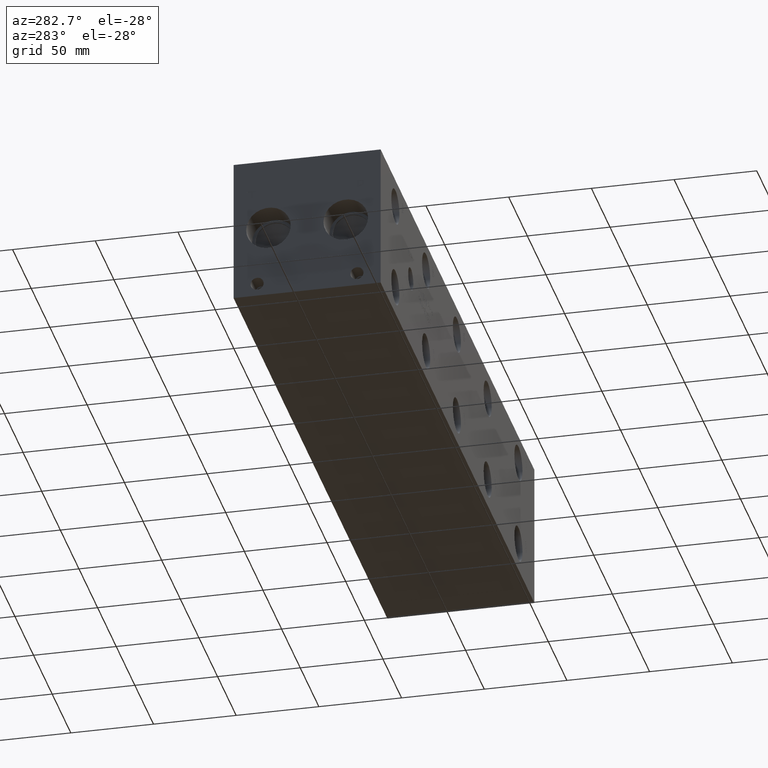
[diagram: clean part render]
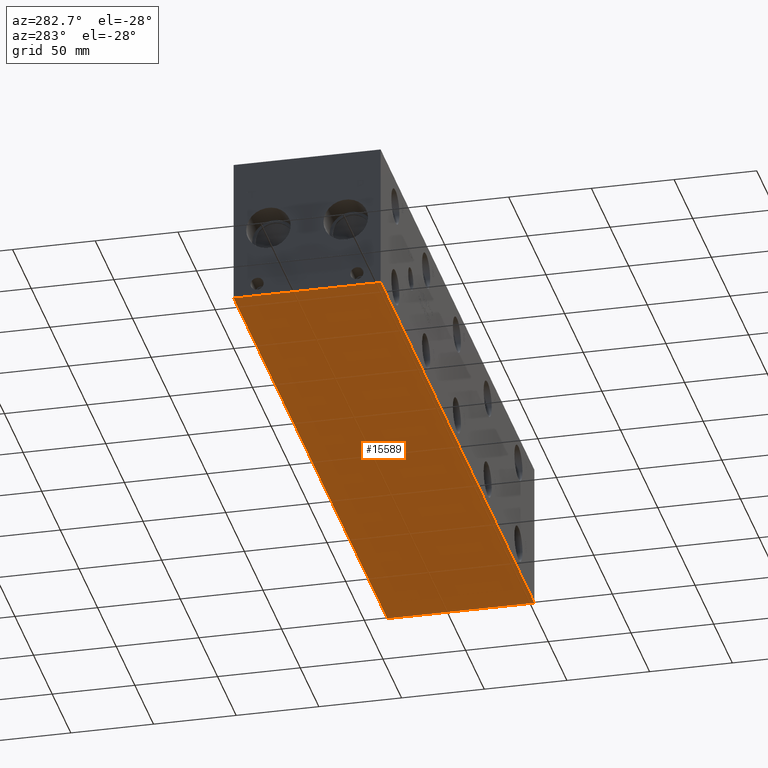
[diagram: same view with one face highlighted and labeled with its STEP entity id]
A machine part, auxiliary view. The second image highlights one B-rep face of the part: STEP entity #15589.
In plain terms, the highlighted planar face has unit normal (0, 0, 1).
Its self-contained STEP definition (entity closure, byte-faithful):
#2087=FACE_OUTER_BOUND('',#3048,.T.);
#3048=EDGE_LOOP('',(#13762,#13763,#13764,#13765));
#3105=LINE('',#20115,#4495);
#3165=LINE('',#20390,#4555);
#3448=LINE('',#22561,#4838);
#4437=LINE('',#26919,#5827);
#4495=VECTOR('',#16655,10.);
#4555=VECTOR('',#16769,10.);
#4838=VECTOR('',#17212,10.);
#5827=VECTOR('',#19851,10.);
#5877=VERTEX_POINT('',#20113);
#5878=VERTEX_POINT('',#20114);
#5937=VERTEX_POINT('',#20388);
#5938=VERTEX_POINT('',#20389);
#7403=EDGE_CURVE('',#5877,#5878,#3105,.T.);
#7487=EDGE_CURVE('',#5937,#5938,#3165,.T.);
#7964=EDGE_CURVE('',#5938,#5877,#3448,.T.);
#9474=EDGE_CURVE('',#5878,#5937,#4437,.T.);
#13762=ORIENTED_EDGE('',*,*,#7964,.F.);
#13763=ORIENTED_EDGE('',*,*,#7487,.F.);
#13764=ORIENTED_EDGE('',*,*,#9474,.F.);
#13765=ORIENTED_EDGE('',*,*,#7403,.F.);
#14210=PLANE('',#16558);
#15589=ADVANCED_FACE('',(#2087),#14210,.F.);
#16558=AXIS2_PLACEMENT_3D('',#26924,#19859,#19860);
#16655=DIRECTION('',(0.,1.,0.));
#16769=DIRECTION('',(0.,-1.,0.));
#17212=DIRECTION('',(1.,0.,0.));
#19851=DIRECTION('',(-1.,0.,0.));
#19859=DIRECTION('center_axis',(0.,0.,1.));
#19860=DIRECTION('ref_axis',(1.,0.,0.));
#20113=CARTESIAN_POINT('',(412.75,0.,0.));
#20114=CARTESIAN_POINT('',(412.75,88.9,0.));
#20115=CARTESIAN_POINT('',(412.75,0.,0.));
#20388=CARTESIAN_POINT('',(0.,88.9,0.));
#20389=CARTESIAN_POINT('',(0.,0.,0.));
#20390=CARTESIAN_POINT('',(0.,88.9,0.));
#22561=CARTESIAN_POINT('',(0.,0.,0.));
#26919=CARTESIAN_POINT('',(412.75,88.9,0.));
#26924=CARTESIAN_POINT('Origin',(206.375,44.45,0.));